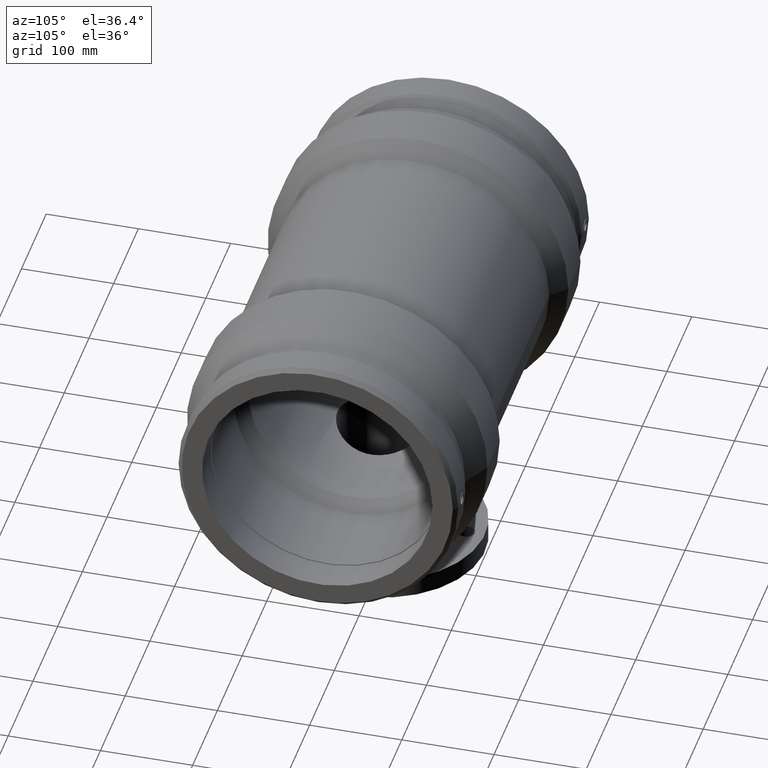
[diagram: clean part render]
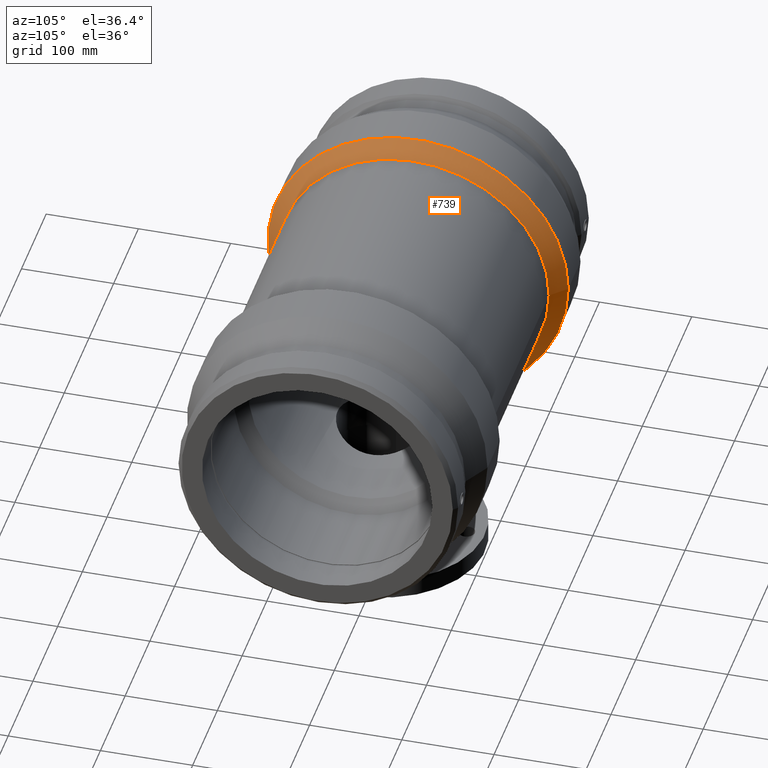
[diagram: same view with one face highlighted and labeled with its STEP entity id]
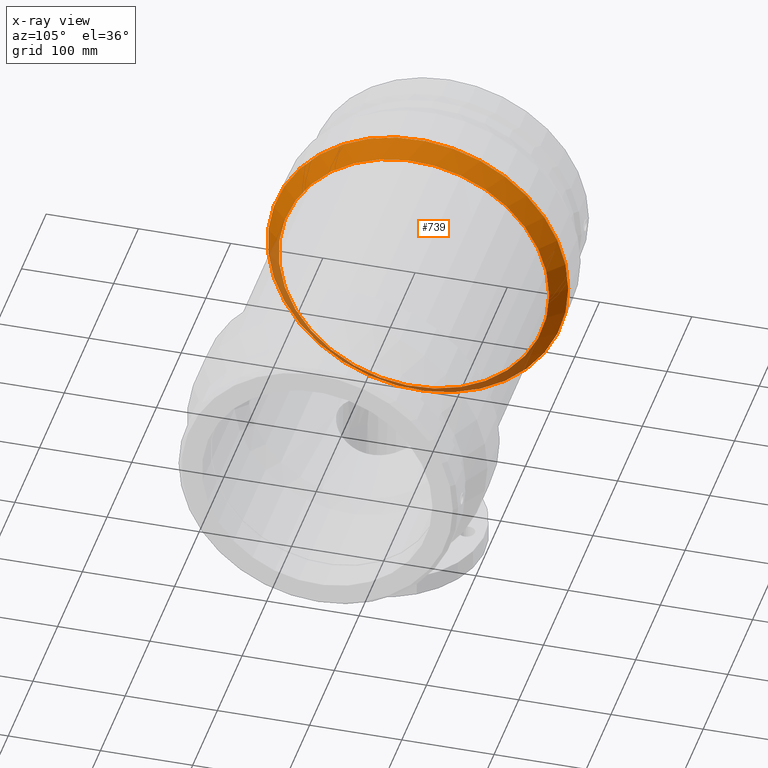
[diagram: x-ray of the same camera — body ghosted, the highlighted face saturated]
A machine part, auxiliary view. The second image highlights one B-rep face of the part: STEP entity #739.
The next image is the same camera in x-ray: the body ghosted, the highlighted face saturated — about 15% of this face is hidden behind the body in this view.
In plain terms, the highlighted conical surface has half-angle 45 deg.
Its self-contained STEP definition (entity closure, byte-faithful):
#21=CONICAL_SURFACE('',#846,154.85,45.);
#99=FACE_BOUND('',#371,.T.);
#148=CIRCLE('',#808,146.7);
#166=CIRCLE('',#845,163.);
#255=FACE_OUTER_BOUND('',#370,.T.);
#370=EDGE_LOOP('',(#656));
#371=EDGE_LOOP('',(#657));
#449=VERTEX_POINT('',#1543);
#469=VERTEX_POINT('',#1668);
#519=EDGE_CURVE('',#449,#449,#148,.T.);
#539=EDGE_CURVE('',#469,#469,#166,.T.);
#656=ORIENTED_EDGE('',*,*,#539,.T.);
#657=ORIENTED_EDGE('',*,*,#519,.F.);
#739=ADVANCED_FACE('',(#255,#99),#21,.T.);
#808=AXIS2_PLACEMENT_3D('',#1544,#981,#982);
#845=AXIS2_PLACEMENT_3D('',#1669,#1055,#1056);
#846=AXIS2_PLACEMENT_3D('',#1670,#1057,#1058);
#981=DIRECTION('center_axis',(1.,0.,0.));
#982=DIRECTION('ref_axis',(0.,0.,-1.));
#1055=DIRECTION('center_axis',(1.,0.,0.));
#1056=DIRECTION('ref_axis',(0.,0.,-1.));
#1057=DIRECTION('center_axis',(-1.,0.,0.));
#1058=DIRECTION('ref_axis',(0.,1.,0.));
#1543=CARTESIAN_POINT('',(-122.395,146.7,0.));
#1544=CARTESIAN_POINT('Origin',(-122.395,0.,0.));
#1668=CARTESIAN_POINT('',(-138.695,163.,0.));
#1669=CARTESIAN_POINT('Origin',(-138.695,0.,0.));
#1670=CARTESIAN_POINT('Origin',(-130.545,0.,0.));